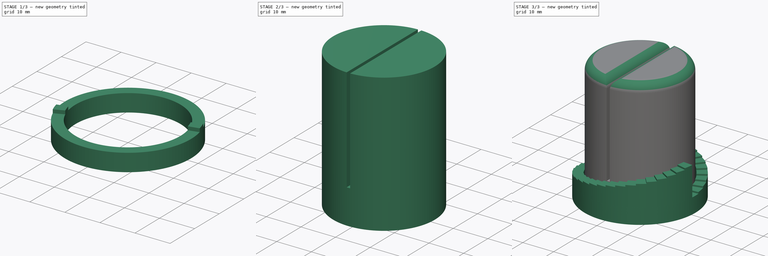
[diagram: build sequence overview — one tinted view per stage of 3, left to right]
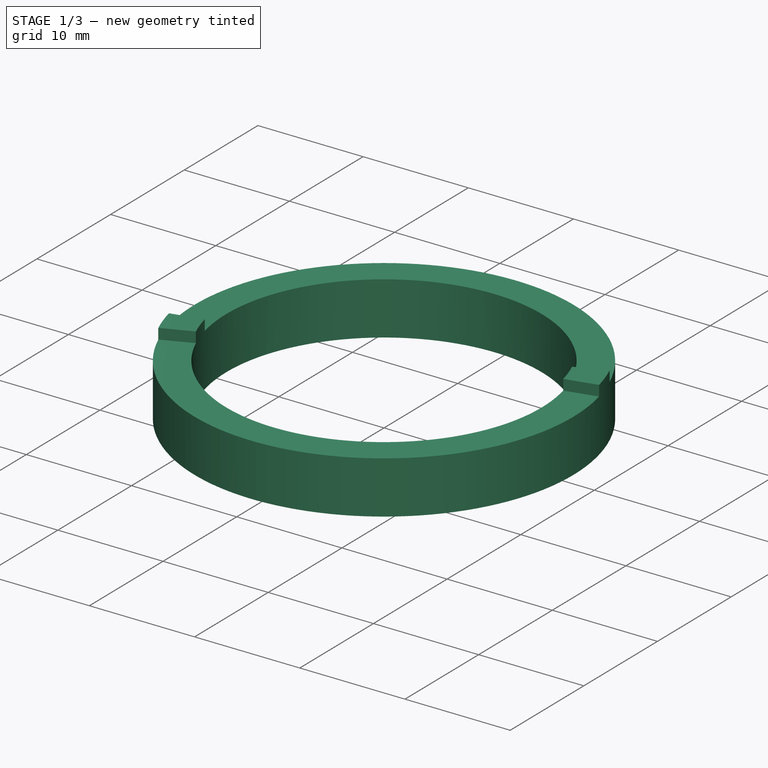
[diagram: stage 1 of 3 — iso view after this stage's code; geometry added in this stage tinted green]
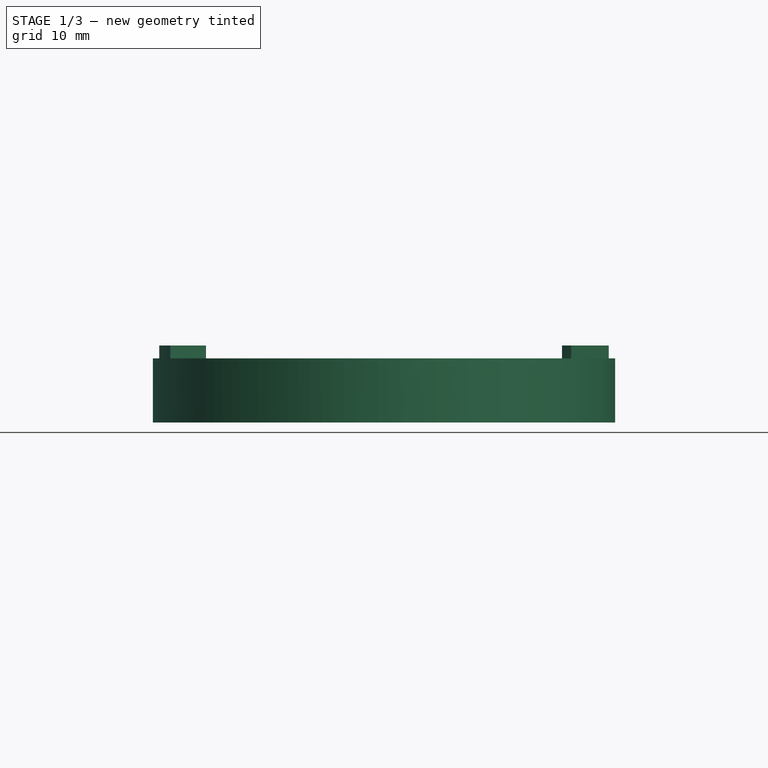
[diagram: stage 1 of 3 — front view after this stage's code; geometry added in this stage tinted green]
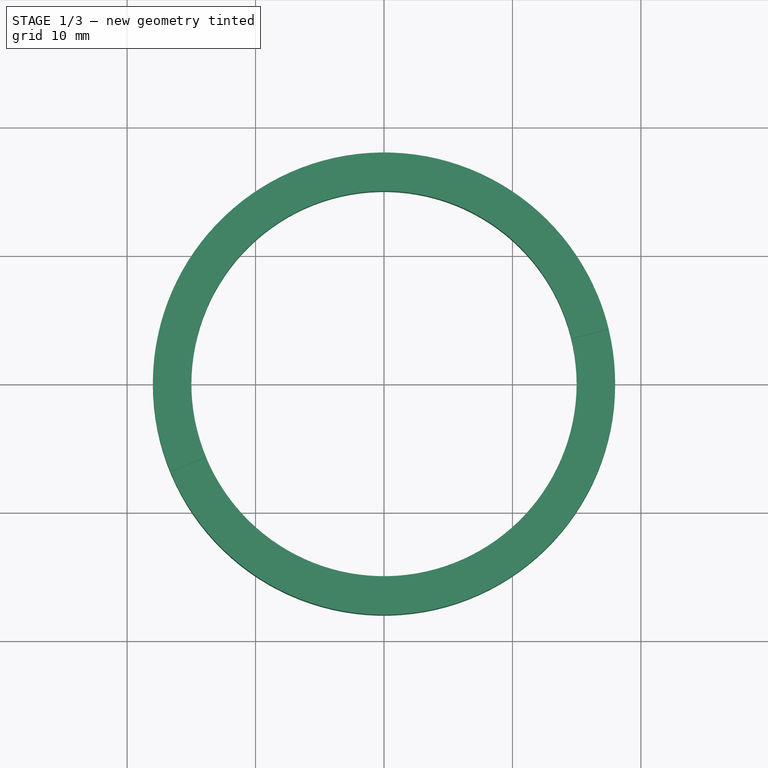
[diagram: stage 1 of 3 — top view after this stage's code; geometry added in this stage tinted green]
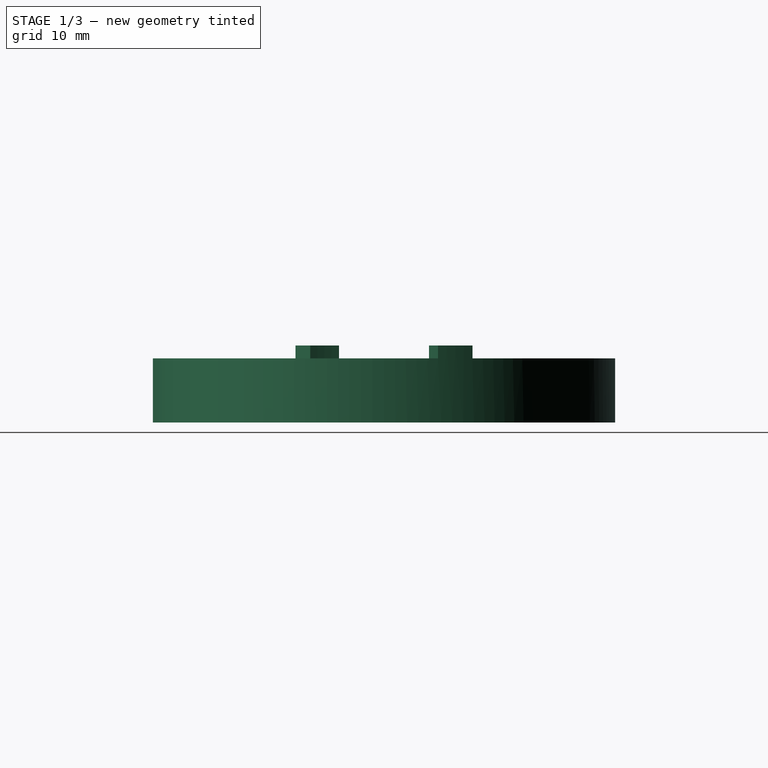
[diagram: stage 1 of 3 — right view after this stage's code; geometry added in this stage tinted green]
FCSTD DOCUMENT  (FreeCAD 1.1R42461 (Git))
Label: test lattice
License: Creative Commons Attribution-NonCommercial-ShareAlike 3.0
LicenseURL: https://creativecommons.org/licenses/by-nc-sa/3.0/
objects: Sketcher::SketchObject×4, PartDesign::Pad×3, PartDesign::Body×2, App::Point×2, App::VarSet×1, Part::FeaturePython×1, PartDesign::SubShapeBinder×1, PartDesign::Pocket×1, PartDesign::Fillet×1, PartDesign::Plane×1
note: 28 computed .brp shape members not serialized (recipe doc carries the construction recipe); baked Part::Feature solids carry a one-line shape summary decoded from their .brp

FEATURE [App::VarSet] VarSet
  Min_Strip_Width = 5
  Slot_Count = 20
  Slot_Idx = 2
  Step = 0.5
FEATURE [Sketcher::SketchObject] Sketch
  ArcFitTolerance = 1e-06
  AttachmentSupport = -> [XY_Plane]
  ExternalTypes = [0]
  FullyConstrained = true
  MakeInternals = false
  MapMode = 5
  sketch-geometry (2):
    g0: Circle CenterX=0 CenterY=0 CenterZ=0 NormalX=0 NormalY=0 NormalZ=1 AngleXU=0 Radius=18
    g1: Circle CenterX=0 CenterY=0 CenterZ=0 NormalX=0 NormalY=0 NormalZ=1 AngleXU=0 Radius=15
  constraints (4):
    c: Coincident(g0,g-1)
    c: Diameter(g1) = 30
    c: Coincident(g1,g0)
    c: Diameter(g0) = 36
FEATURE [Sketcher::SketchObject] Sketch001
  ArcFitTolerance = 1e-06
  AttachmentSupport = -> [XY_Plane]
  ExternalGeometry = -> [Sketch]
  ExternalTypes = [0]
  FullyConstrained = true
  MakeInternals = false
  MapMode = 5
  expr: Constraints[3] = 180 / VarSet.Slot_Count
  expr: Constraints[6] = VarSet.Slot_Idx * 180 / VarSet.Slot_Count
  sketch-geometry (9):
    g0: ArcOfCircle CenterX=0 CenterY=0 CenterZ=0 NormalX=0 NormalY=0 NormalZ=1 AngleXU=0 Radius=18 StartAngle=0.235619 EndAngle=0.392699
    g1: LineSegment StartX=13.8582 StartY=5.74025 StartZ=0 EndX=16.6298 EndY=6.8883 EndZ=0
    g2: LineSegment StartX=17.5027 StartY=4.20202 StartZ=0 EndX=14.5855 EndY=3.50168 EndZ=0
    g3: LineSegment [constr] StartX=17.0662 StartY=5.54516 StartZ=0 EndX=0 EndY=0 EndZ=0
    g4: ArcOfCircle CenterX=0 CenterY=0 CenterZ=0 NormalX=0 NormalY=0 NormalZ=1 AngleXU=0 Radius=15 StartAngle=0.235619 EndAngle=0.392699
    g5: ArcOfCircle CenterX=0 CenterY=0 CenterZ=0 NormalX=0 NormalY=0 NormalZ=1 AngleXU=0 Radius=15 StartAngle=3.37721 EndAngle=3.53429
    g6: ArcOfCircle CenterX=0 CenterY=0 CenterZ=0 NormalX=0 NormalY=0 NormalZ=1 AngleXU=0 Radius=18 StartAngle=3.37721 EndAngle=3.53429
    g7: LineSegment StartX=-17.5027 StartY=-4.20202 StartZ=0 EndX=-14.5855 EndY=-3.50168 EndZ=0
    g8: LineSegment StartX=-16.6298 StartY=-6.8883 StartZ=0 EndX=-13.8582 EndY=-5.74025 EndZ=0
  constraints (24):
    c: Coincident(g0,g-1)
    c: Coincident(g1,g0)
    c: Coincident(g2,g0)
    c: Angle(g2,g1) = 0.15708
    c: Coincident(g3,g0)
    c: Symmetric(g0,g0,g3)
    c: Angle(g-1,g3) = 0.314159
    c: Coincident(g4,g0)
    c: Coincident(g1,g4)
    c: Coincident(g2,g4)
    c: PointOnObject(g0,g1)
    c: PointOnObject(g0,g2)
    c: Coincident(g5,g0)
    c: Coincident(g6,g0)
    c: Coincident(g7,g6)
    c: Coincident(g7,g5)
    c: Coincident(g8,g6)
    c: Coincident(g8,g5)
    c: Symmetric(g0,g6,g0)
    c: Symmetric(g5,g1,g0)
    c: PointOnObject(g0,g7)
    c: PointOnObject(g0,g8)
    c: PointOnObject(g6,g-3)
    c: PointOnObject(g5,g-4)
FEATURE [PartDesign::Pad] Pad001
  Direction = (0,0,1)
  Length = 5
  Length2 = 10
  Profile = -> Sketch
  ReferenceAxis = -> Sketch [N_Axis]
  Refine = true
  Reversed = true
  Suppressed = false
  Type = 0
FEATURE [PartDesign::Pad] Pad
  BaseFeature = -> Pad001
  Direction = (0,0,1)
  Length = 1
  Length2 = 10
  Profile = -> Sketch001
  ReferenceAxis = -> Sketch001 [N_Axis]
  Refine = true
  Suppressed = false
  Type = 0
  expr: Length = VarSet.Slot_Idx * VarSet.Step
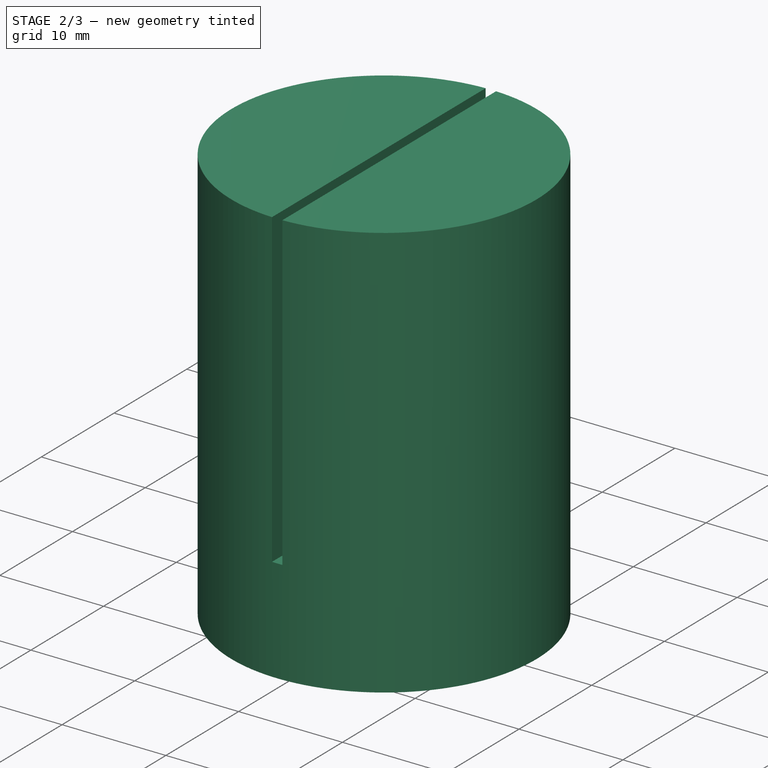
[diagram: stage 2 of 3 — iso view after this stage's code; geometry added in this stage tinted green]
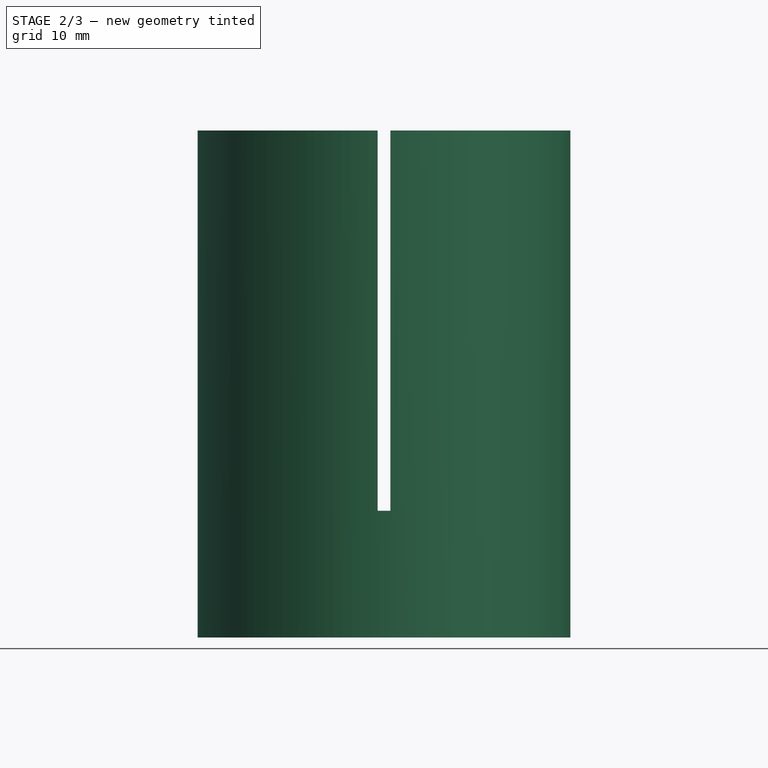
[diagram: stage 2 of 3 — front view after this stage's code; geometry added in this stage tinted green]
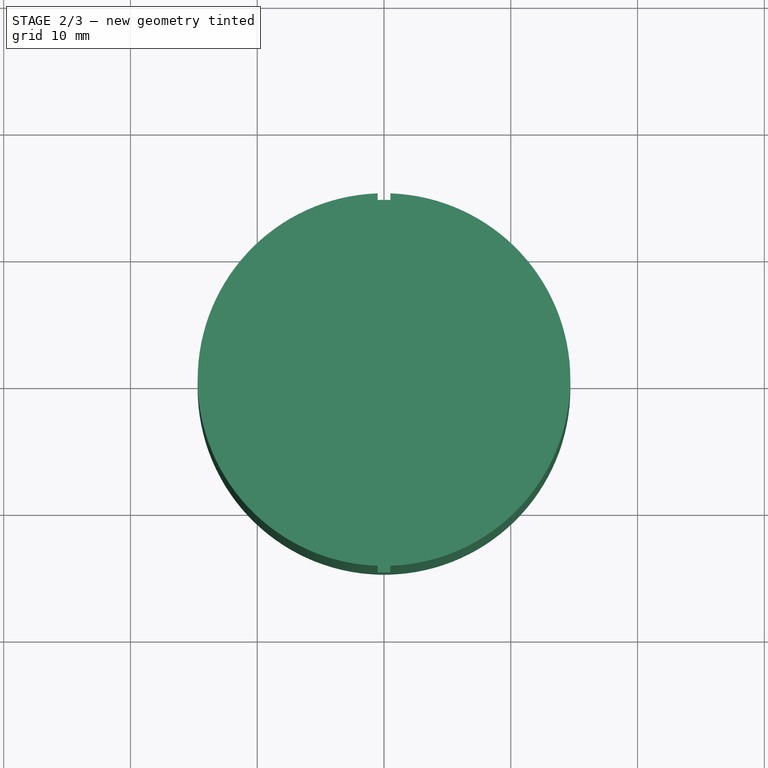
[diagram: stage 2 of 3 — top view after this stage's code; geometry added in this stage tinted green]
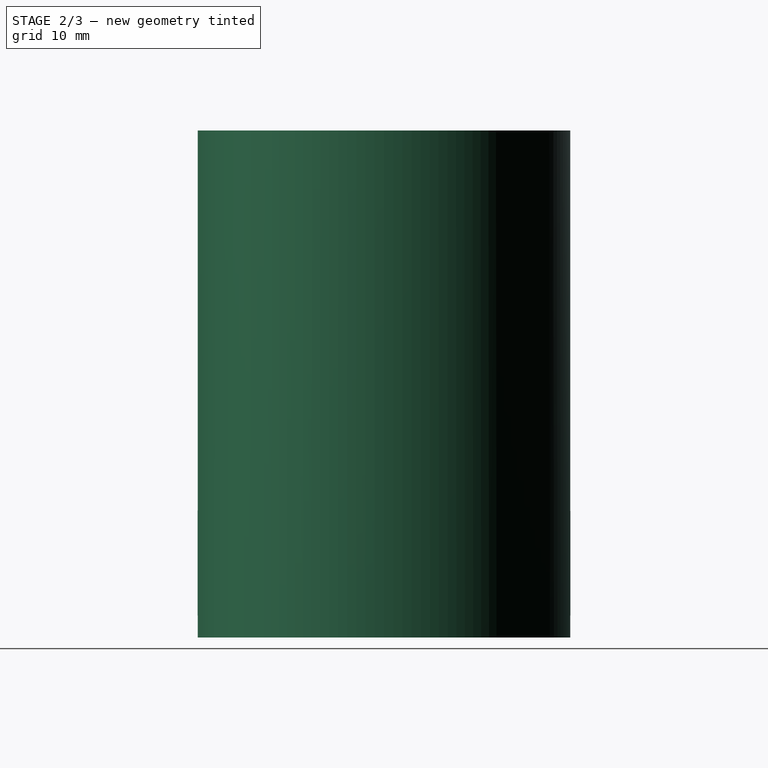
[diagram: stage 2 of 3 — right view after this stage's code; geometry added in this stage tinted green]
FEATURE [PartDesign::SubShapeBinder] Binder  label="Base Plan"
  BindCopyOnChange = 0
  BindMode = 0
  ClaimChildren = false
  Context = -> Body001 [Binder.]
  Fuse = false
  MakeFace = true
  OffsetFill = false
  OffsetIntersection = false
  OffsetJoinType = 0
  OffsetOpenResult = false
  PartialLoad = false
  Refine = true
  Relative = true
  Support = -> [Body[Pad.Face10]]
  _Version = 2
FEATURE [Sketcher::SketchObject] Sketch002
  ArcFitTolerance = 1e-06
  AttachmentSupport = -> [Binder]
  ExternalGeometry = -> [Binder]
  ExternalTypes = [0]
  FullyConstrained = true
  MakeInternals = false
  MapMode = 5
  Placement = pos=(0,0,-5) rot=(1,0,0;3.14159rad)
  sketch-geometry (1):
    g0: Circle CenterX=0 CenterY=0 CenterZ=0 NormalX=0 NormalY=0 NormalZ=1 AngleXU=0 Radius=14.7
  constraints (2):
    c: Coincident(g0,g-1)
    c: Distance(g-3,g0) = 0.3
FEATURE [PartDesign::Pad] Pad002
  Direction = (0,0,-1)
  Length = 40
  Length2 = 10
  Profile = -> Sketch002
  ReferenceAxis = -> Sketch002 [N_Axis]
  Refine = true
  Reversed = true
  Suppressed = false
  Type = 0
FEATURE [Sketcher::SketchObject] Sketch003
  ArcFitTolerance = 1e-06
  AttachmentSupport = -> [Pad002]
  ExternalGeometry = -> [Pad002]
  ExternalTypes = [0]
  FullyConstrained = true
  MakeInternals = false
  MapMode = 5
  Placement = pos=(0,0,35) rot=(0,0,1;0rad)
  sketch-geometry (5):
    g0: LineSegment StartX=-0.5 StartY=-20 StartZ=0 EndX=0.5 EndY=-20 EndZ=0
    g1: LineSegment StartX=0.5 StartY=-20 StartZ=0 EndX=0.5 EndY=20 EndZ=0
    g2: LineSegment StartX=0.5 StartY=20 StartZ=0 EndX=-0.5 EndY=20 EndZ=0
    g3: LineSegment StartX=-0.5 StartY=20 StartZ=0 EndX=-0.5 EndY=-20 EndZ=0
    g4: GeomPoint [constr] X=0 Y=0 Z=0
  constraints (12):
    c: Coincident(g0,g1)
    c: Coincident(g1,g2)
    c: Coincident(g2,g3)
    c: Coincident(g3,g0)
    c: Horizontal(g0)
    c: Horizontal(g2)
    c: Vertical(g1)
    c: Vertical(g3)
    c: Symmetric(g2,g0,g4)
    c: Distance(g1,g3) = 1
    c: Coincident(g4,g-1)
    c: DistanceY(g1,g1) = 40
FEATURE [PartDesign::Pocket] Pocket
  BaseFeature = -> Pad002
  Direction = (0,0,-1)
  Length = 30
  Length2 = 5
  Profile = -> Sketch003
  ReferenceAxis = -> Sketch003 [N_Axis]
  Refine = true
  Suppressed = false
  Type = 0
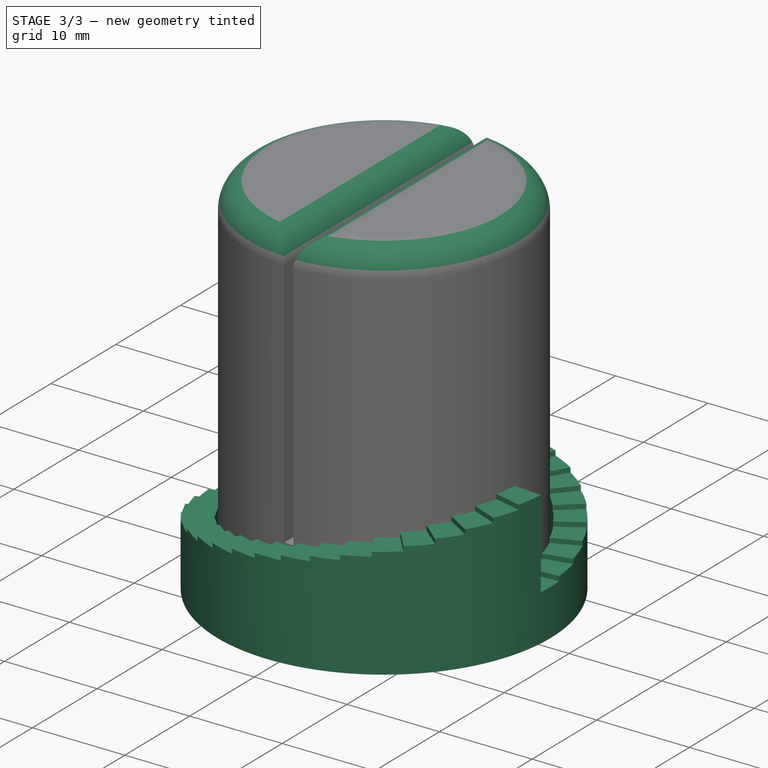
[diagram: stage 3 of 3 — iso view after this stage's code; geometry added in this stage tinted green]
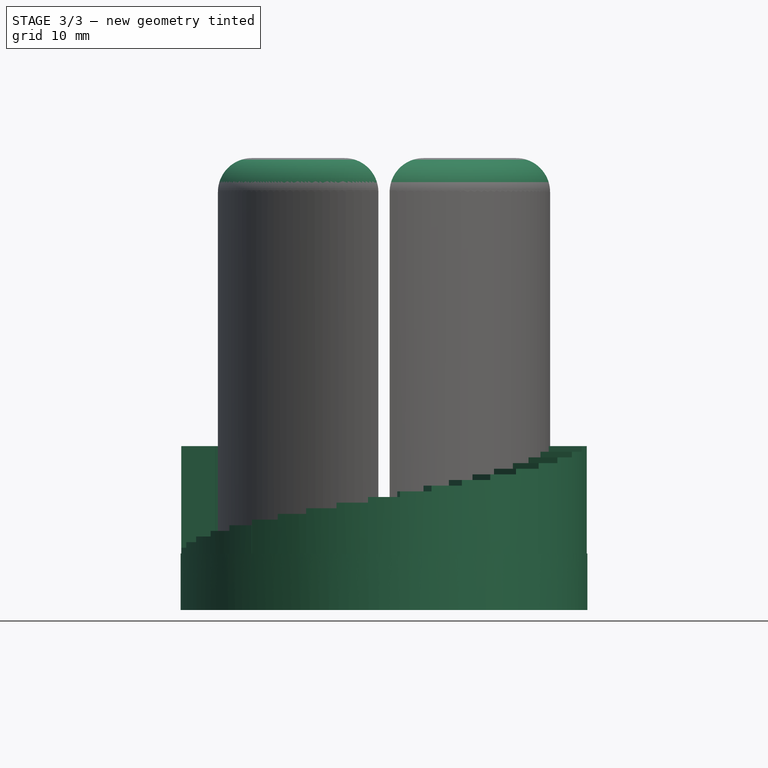
[diagram: stage 3 of 3 — front view after this stage's code; geometry added in this stage tinted green]
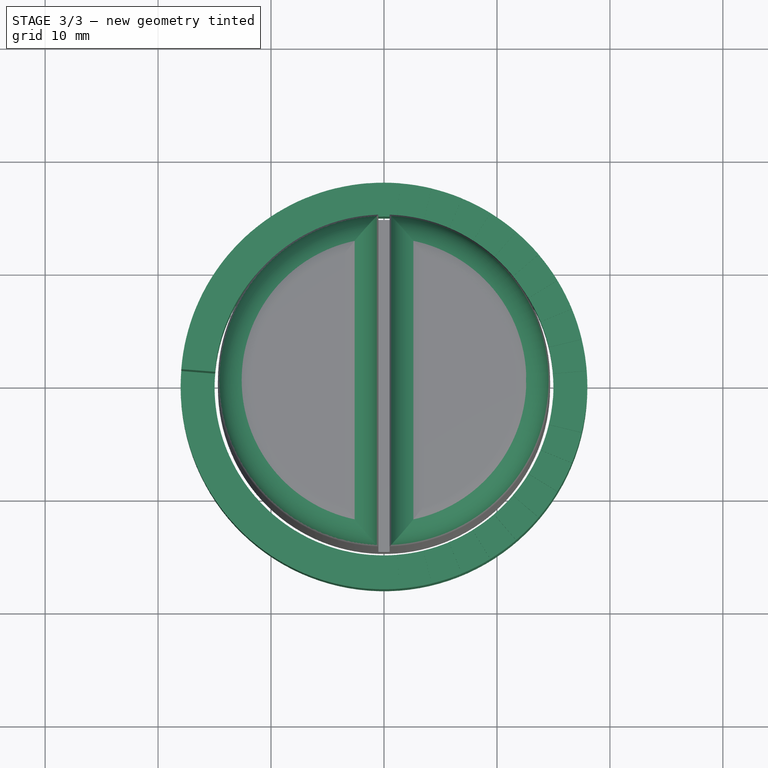
[diagram: stage 3 of 3 — top view after this stage's code; geometry added in this stage tinted green]
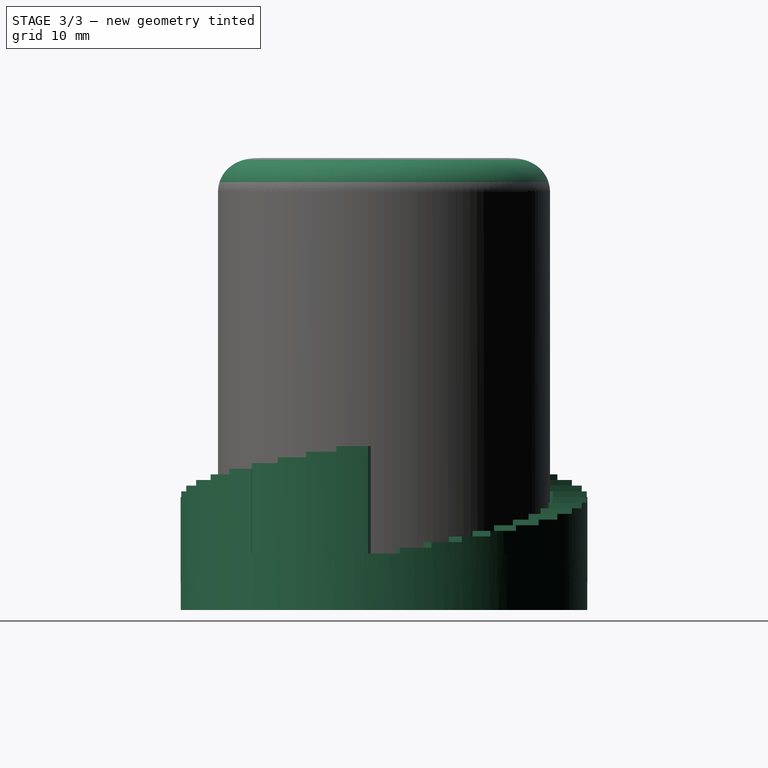
[diagram: stage 3 of 3 — right view after this stage's code; geometry added in this stage tinted green]
FEATURE [PartDesign::Body] Body  label="Corps"
  AllowCompound = false
  Group = -> [Pad001,Sketch001,Pad,Sketch]
  Origin = -> Origin
  Tip = -> Pad
FEATURE [Part::FeaturePython] ParaSeries  # WARN: FeaturePython — macro-defined, semantics opaque (R4)
  Alignment = 0
  CellStart = A1
  Count = 19
  DistributionLaw = 0
  EndInclusive = false
  ExposePlacement = false
  GeneratorMode = 2
  MarkerShape = 1
  MarkerSize = 0
  NumElements = 0
  Object = -> Pad
  ParameterRef = VarSet.Slot_Idx
  ParameterType = 1
  Recomputing = 2
  SpanEnd = 20
  SpanStart = 1
  Step = 1
  Type = lattice2ParaSeries.LatticeParaSeries
  VSGVersion = 1
  Values = 1.0 | 2.0 | 3.0 | 4.0 | 5.0 | 6.0 | 7.0 | 8.0 | 9.0 | 10.0 | 11.0 | 12.0 | 13.0 | 14.0 | 15.0 | 16.0 | 17.0 | 18.0 | 19.0
  ValuesSource = 2
  isLattice = 0
  expr: SpanEnd = VarSet.Slot_Count
FEATURE [PartDesign::Fillet] Fillet
  Base = -> Pocket [Face7,Face3]
  BaseFeature = -> Pocket
  Radius = 3
  Refine = true
  SupportTransform = false
  Suppressed = false
  UseAllEdges = false
FEATURE [PartDesign::Plane] DatumPlane  label="Max_Cut"
  AttachmentSupport = -> [Pad]
  Length = 60
  MapMode = 5
  ResizeMode = 0
  Width = 60
FEATURE [PartDesign::Body] Body001  label="Corps001"
  AllowCompound = false
  Group = -> [Binder,Sketch002,Pad002,Sketch003,Pocket,Fillet,DatumPlane]
  Origin = -> Origin001
  Tip = -> Fillet
FEATURE [App::Point] Origin002  label="Origine"
  Role = Origin
FEATURE [App::Point] Origin003  label="Origine"
  Role = Origin
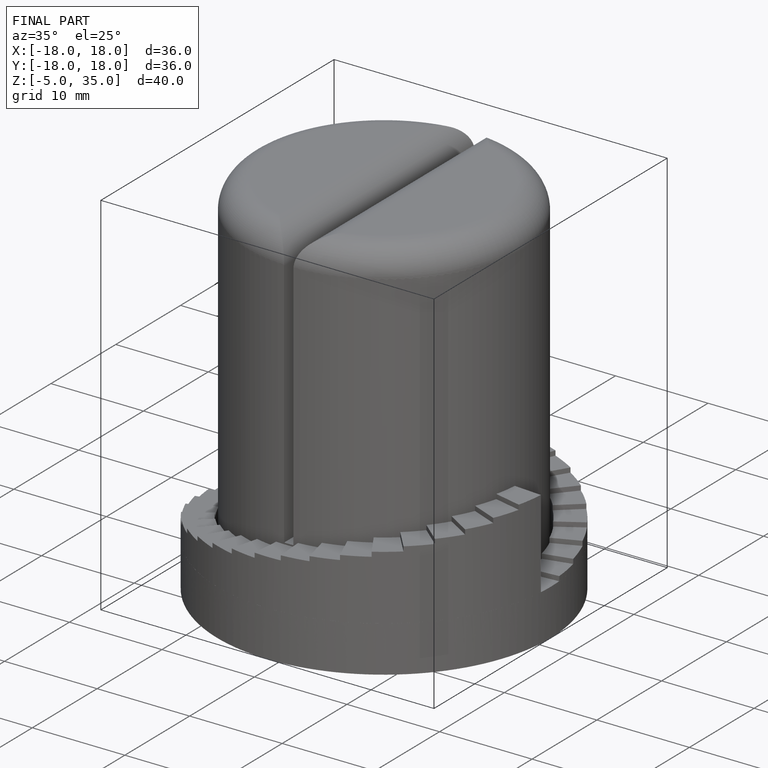
[diagram: finished part — iso view with bounding-box wireframe]
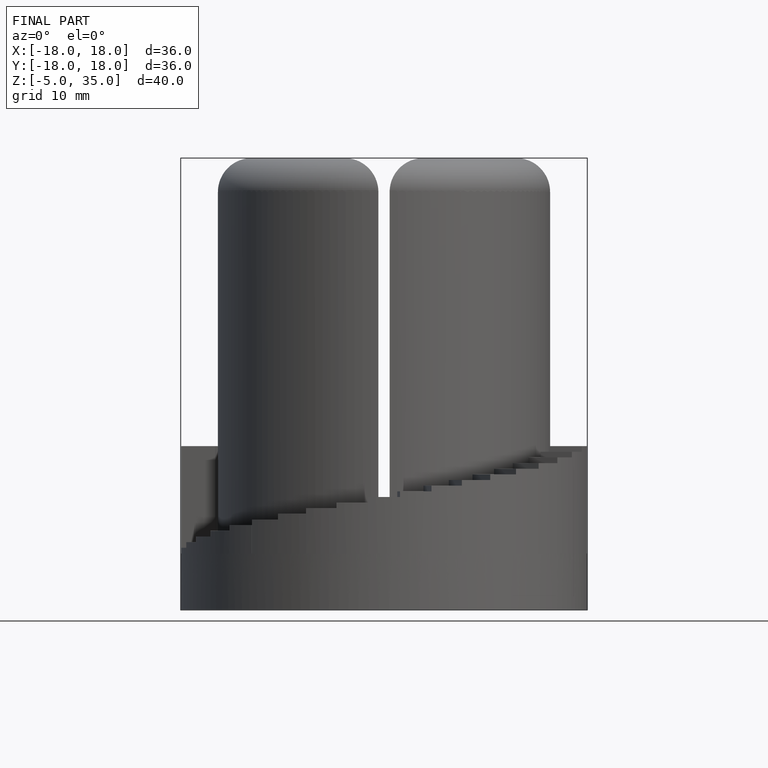
[diagram: finished part — front view with bounding-box wireframe]
